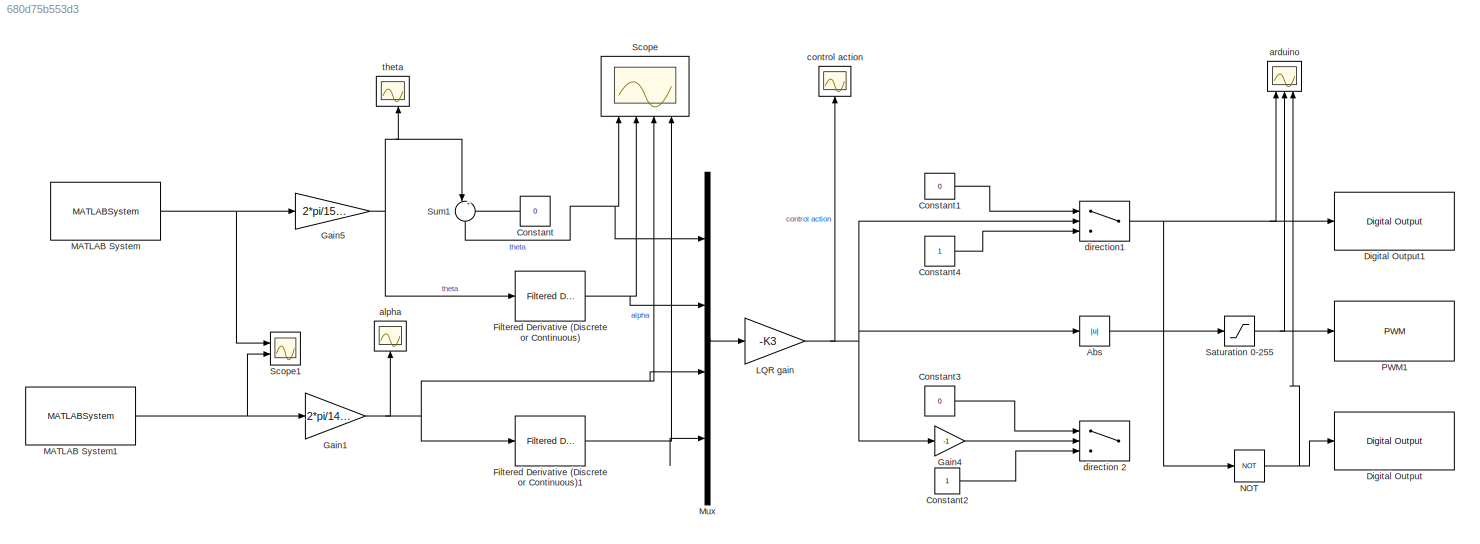
MODEL slx_680d75b553d3
KIND model
CONFIG AbsTol = auto
CONFIG EnableMultiTasking = on
CONFIG FixedStep = auto
CONFIG MaxStep = auto
CONFIG MinStep = auto
CONFIG RelTol = 1e-3
CONFIG SampleTimeConstraint = Unconstrained
CONFIG SolverName = ode45
CONFIG StartTime = 0.0
CONFIG StopTime = 10.0
BLOCK [Abs] Abs
  SaturateOnIntegerOverflow = off
BLOCK [Constant] Constant
  NameLocation = top
  SampleTime = -1
  Value = 0
BLOCK [Constant] Constant1
  Value = 0
BLOCK [Constant] Constant2
  Commented = on
BLOCK [Constant] Constant3
  Commented = on
  Value = 0
BLOCK [Constant] Constant4
BLOCK [Reference] Digital Output  REF=arduinolib/Digital Output
  Ports = [1]
  SourceBlock = arduinolib/Digital Output
  SourceProductBaseCode = ARDUINO
  SourceType = Arduino Digital Output
BLOCK [Reference] Digital Output1  REF=arduinolib/Digital Output
  Ports = [1]
  SourceBlock = arduinolib/Digital Output
  SourceProductBaseCode = ARDUINO
  SourceType = Arduino Digital Output
BLOCK [Reference] Filtered Derivative (Discrete or Continuous)  REF=eeGeneralControl/Filtered Derivative
(Discrete or Continuous)
  Ports = [1, 1]
  SourceBlock = eeGeneralControl/Filtered Derivative\n(Discrete or Continuous)
  SourceProductBaseCode = PS
  SourceType = Filtered Derivative (Discrete or Continuous)
BLOCK [Reference] Filtered Derivative (Discrete or Continuous)1  REF=eeGeneralControl/Filtered Derivative
(Discrete or Continuous)
  Ports = [1, 1]
  SourceBlock = eeGeneralControl/Filtered Derivative\n(Discrete or Continuous)
  SourceProductBaseCode = PS
  SourceType = Filtered Derivative (Discrete or Continuous)
BLOCK [Gain] Gain1
  Gain = 2*pi/1440
  OutDataTypeStr = double
BLOCK [Gain] Gain4
  Commented = on
  Gain = -1
BLOCK [Gain] Gain5
  Gain = 2*pi/1570
  OutDataTypeStr = double
BLOCK [Gain] LQR gain 
  Gain = -K3
  Multiplication = Matrix(K*u)
BLOCK [MATLABSystem] MATLAB System
  Encoder = 0
  MaskDisplay = disp('Encoder');\nport_label('output',1,'y');
  MaskType = Encoder_arduino
  PinA = 19
  PinB = 18
  Ports = [0, 1]
  SampleTime = 0.001
  System = Encoder_arduino
BLOCK [MATLABSystem] MATLAB System1
  Encoder = 1
  MaskDisplay = disp('Encoder');\nport_label('output',1,'y');
  MaskType = Encoder_arduino
  PinA = 3
  PinB = 2
  Ports = [0, 1]
  SampleTime = 0.001
  System = Encoder_arduino
BLOCK [Mux] Mux
  DisplayOption = bar
  Ports = [4, 1]
BLOCK [Logic] NOT
  AllPortsSameDT = off
  IconShape = distinctive
  Operator = NOT
  OutDataTypeStr = boolean
  Ports = [1, 1]
BLOCK [Reference] PWM1  REF=arduinolib/PWM
  Ports = [1]
  SourceBlock = arduinolib/PWM
  SourceProductBaseCode = ARDUINO
  SourceType = Arduino PWM
BLOCK [Saturate] Saturation 0-255
  LinearizeAsGain = off
  LockScale = on
  LowerLimit = 80
  UpperLimit = 255
BLOCK [Scope] Scope
  Floating = off
  NameLocation = right
  NumInputPorts = 4
  Ports = [4]
  ScopeSpecificationString = Simulink.scopes.TimeScopeBlockCfg('CurrentConfiguration', extmgr.ConfigurationSet(extmgr.Configuration('Core','General UI',true),extmgr.Configuration('Core','Source UI',true),extmgr.Configuration('Sources','WiredSimulink',true,'DataLoggingSaveFormat','Array','DataLoggingLimitDataPoints',true,'DataLoggingDecimation','1','DataLoggingVariableName','ScopeData1'),extmgr.Configuration('Visuals','Time Do...<+3873ch>
BLOCK [Scope] Scope1
  Floating = off
  NumInputPorts = 2
  Ports = [2]
  ScopeSpecificationString = Simulink.scopes.TimeScopeBlockCfg('CurrentConfiguration', extmgr.ConfigurationSet(extmgr.Configuration('Core','General UI',true),extmgr.Configuration('Core','Source UI',true),extmgr.Configuration('Sources','WiredSimulink',true,'DataLoggingVariableName','ScopeData2'),extmgr.Configuration('Visuals','Time Domain',true,'SerializedDisplays',{struct('MinYLimReal','-71.75','MaxYLimReal','165.75','YLabelR...<+2037ch>
BLOCK [Sum] Sum1
  Inputs = |+-
  NameLocation = left
  Ports = [2, 1]
BLOCK [Scope] alpha
  Floating = off
  NameLocation = right
  NumInputPorts = 1
  Ports = [1]
  ScopeSpecificationString = Simulink.scopes.TimeScopeBlockCfg('CurrentConfiguration', extmgr.ConfigurationSet(extmgr.Configuration('Core','General UI',true),extmgr.Configuration('Core','Source UI',true),extmgr.Configuration('Sources','WiredSimulink',true,'DataLoggingVariableName','ScopeData3'),extmgr.Configuration('Visuals','Time Domain',true,'SerializedDisplays',{struct('MinYLimReal','-0.92612','MaxYLimReal','1.17919','YLab...<+1416ch>
BLOCK [Scope] arduino
  Floating = off
  NameLocation = right
  NumInputPorts = 3
  Ports = [3]
  ScopeSpecificationString = Simulink.scopes.TimeScopeBlockCfg('CurrentConfiguration', extmgr.ConfigurationSet(extmgr.Configuration('Core','General UI',true),extmgr.Configuration('Core','Source UI',true),extmgr.Configuration('Sources','WiredSimulink',true,'DataLoggingVariableName','ScopeData4'),extmgr.Configuration('Visuals','Time Domain',true,'SerializedDisplays',{struct('MinYLimReal','-0.125','MaxYLimReal','1.125','YLabelRe...<+2769ch>
BLOCK [Scope] control action 
  Floating = off
  NameLocation = right
  NumInputPorts = 1
  Ports = [1]
  ScopeSpecificationString = Simulink.scopes.TimeScopeBlockCfg('CurrentConfiguration', extmgr.ConfigurationSet(extmgr.Configuration('Core','General UI',true),extmgr.Configuration('Core','Source UI',true),extmgr.Configuration('Sources','WiredSimulink',true,'DataLoggingVariableName','ScopeData5'),extmgr.Configuration('Visuals','Time Domain',true,'SerializedDisplays',{struct('MinYLimReal','-4358.23193','MaxYLimReal','5012.20009'...<+1499ch>
BLOCK [Switch] direction 2
  Commented = on
  Criteria = u2 > Threshold
  InputSameDT = off
  SaturateOnIntegerOverflow = off
BLOCK [Switch] direction1
  Criteria = u2 > Threshold
  InputSameDT = off
  SaturateOnIntegerOverflow = off
BLOCK [Scope] theta
  Floating = off
  NameLocation = right
  NumInputPorts = 2
  Ports = [2]
  ScopeSpecificationString = Simulink.scopes.TimeScopeBlockCfg('CurrentConfiguration', extmgr.ConfigurationSet(extmgr.Configuration('Core','General UI',true),extmgr.Configuration('Core','Source UI',true),extmgr.Configuration('Sources','WiredSimulink',true),extmgr.Configuration('Visuals','Time Domain',true,'SerializedDisplays',{struct('MinYLimReal','-1.92798','MaxYLimReal','0.7834','YLabelReal','','MinYLimMag','0.00000','MaxYL...<+1416ch>
LINE Abs:1 -> Saturation 0-255:1
LINE Constant1:1 -> direction1:1
LINE Constant2:1 -> direction 2:3
LINE Constant3:1 -> direction 2:1
LINE Constant4:1 -> direction1:3
LINE Constant:1 -> Sum1:2
NET Filtered Derivative (Discrete or Continuous)1:1 -> Mux:4, Scope:4
NET Filtered Derivative (Discrete or Continuous):1 -> Mux:2, Scope:2
NET Gain1:1 -> Filtered Derivative (Discrete or Continuous)1:1, Mux:3, Scope:3, alpha:1
LINE Gain4:1 -> direction 2:2
NET Gain5:1 -> Filtered Derivative (Discrete or Continuous):1, Sum1:1, theta:2
NET LQR gain :1 -> Abs:1, Gain4:1, control action :1, direction1:2
NET MATLAB System1:1 -> Gain1:1, Scope1:2
NET MATLAB System:1 -> Gain5:1, Scope1:1
LINE Mux:1 -> LQR gain :1
NET NOT:1 -> Digital Output:1, arduino:3
NET Saturation 0-255:1 -> PWM1:1, arduino:2
NET Sum1:1 -> Mux:1, Scope:1
NET direction1:1 -> Digital Output1:1, NOT:1, arduino:1
note: NET lines group one-source signal fan-out (src -> all destinations, sorted); 1:1 wires keep LINE
